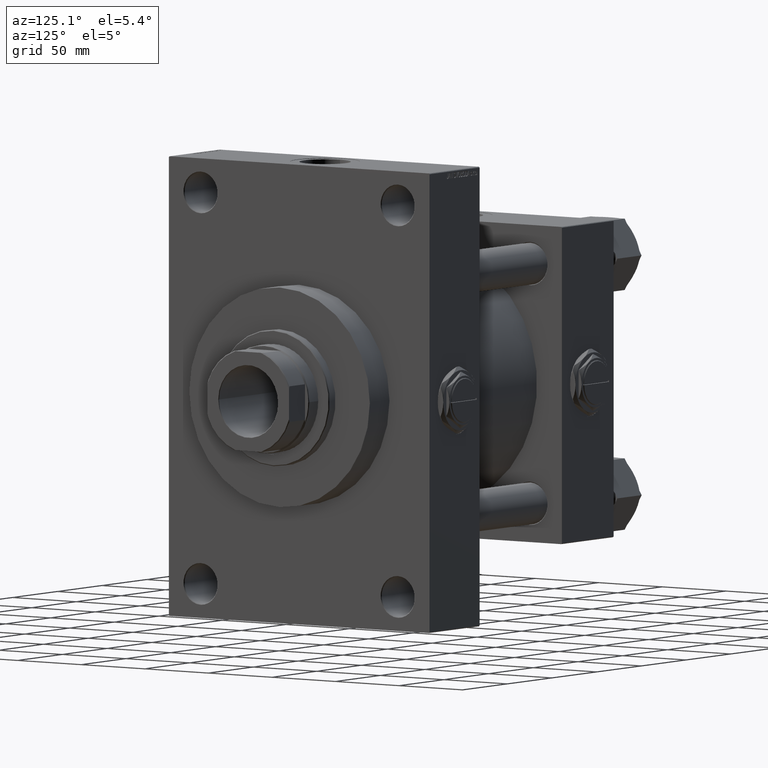
[diagram: clean part render]
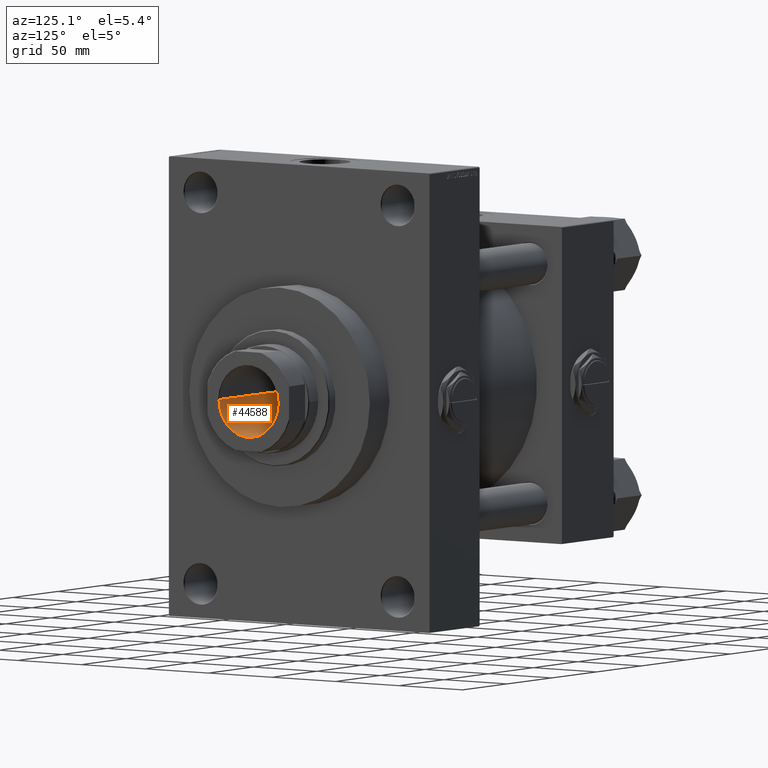
[diagram: same view with one face highlighted and labeled with its STEP entity id]
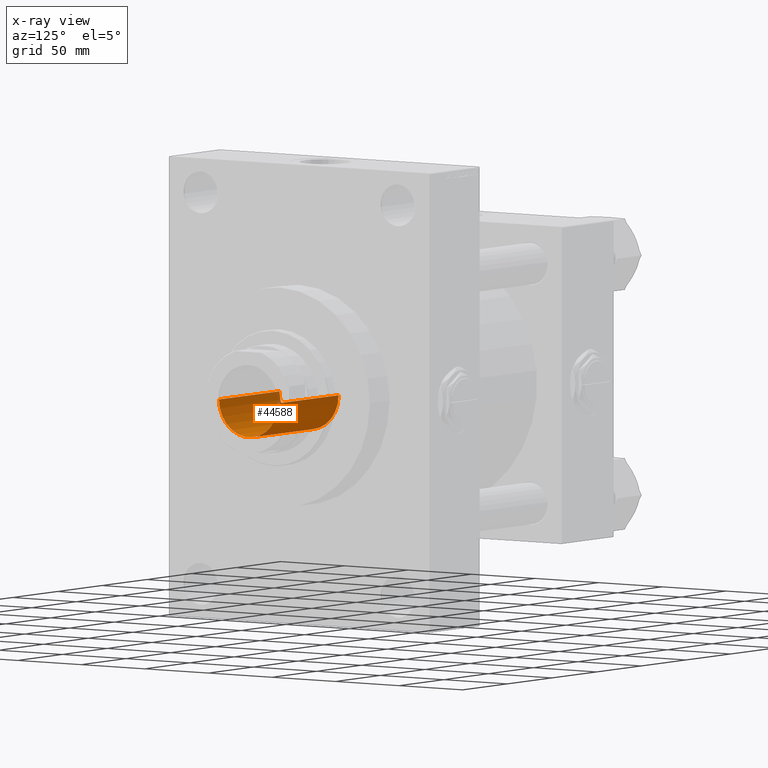
[diagram: x-ray of the same camera — body ghosted, the highlighted face saturated]
A machine part, auxiliary view. The second image highlights one B-rep face of the part: STEP entity #44588.
The next image is the same camera in x-ray: the body ghosted, the highlighted face saturated — about 1% of this face is hidden behind the body in this view.
In plain terms, the highlighted cylindrical surface (edge-blend (fillet) strip) has radius 23.25 mm, axis along (1, 0, 0).
Its self-contained STEP definition (entity closure, byte-faithful):
#722 = CARTESIAN_POINT ( 'NONE',  ( 0.000000000000000000, 0.000000000000000000, 205.0000000000000000 ) ) ;
#1824 = ORIENTED_EDGE ( 'NONE', *, *, #2551, .F. ) ;
#1979 = CARTESIAN_POINT ( 'NONE',  ( -23.24999999999999289, 2.847303808017595350E-15, 205.0000000000000000 ) ) ;
#2551 = EDGE_CURVE ( 'NONE', #13494, #7389, #10045, .T. ) ;
#2690 = CIRCLE ( 'NONE', #37274, 23.24999999999999289 ) ;
#4000 = CYLINDRICAL_SURFACE ( 'NONE', #13345, 23.24999999999999289 ) ;
#4251 = DIRECTION ( 'NONE',  ( 1.000000000000000000, 0.000000000000000000, 0.000000000000000000 ) ) ;
#5486 = CARTESIAN_POINT ( 'NONE',  ( 0.000000000000000000, 0.000000000000000000, 136.9999999999999716 ) ) ;
#7389 = VERTEX_POINT ( 'NONE', #41402 ) ;
#10045 = LINE ( 'NONE', #1979, #28356 ) ;
#10159 = VERTEX_POINT ( 'NONE', #39017 ) ;
#12546 = AXIS2_PLACEMENT_3D ( 'NONE', #5486, #43017, #20841 ) ;
#13345 = AXIS2_PLACEMENT_3D ( 'NONE', #722, #16084, #4251 ) ;
#13494 = VERTEX_POINT ( 'NONE', #48551 ) ;
#14475 = DIRECTION ( 'NONE',  ( 1.000000000000000000, 0.000000000000000000, 0.000000000000000000 ) ) ;
#14537 = DIRECTION ( 'NONE',  ( -0.000000000000000000, -0.000000000000000000, 1.000000000000000000 ) ) ;
#16084 = DIRECTION ( 'NONE',  ( -0.000000000000000000, -0.000000000000000000, 1.000000000000000000 ) ) ;
#16187 = CARTESIAN_POINT ( 'NONE',  ( 23.24999999999999289, 0.000000000000000000, 205.0000000000000000 ) ) ;
#18260 = DIRECTION ( 'NONE',  ( 0.000000000000000000, 0.000000000000000000, 1.000000000000000000 ) ) ;
#18975 = CIRCLE ( 'NONE', #12546, 23.24999999999998579 ) ;
#19327 = EDGE_CURVE ( 'NONE', #23455, #10159, #24007, .T. ) ;
#20841 = DIRECTION ( 'NONE',  ( 1.000000000000000000, 0.000000000000000000, 0.000000000000000000 ) ) ;
#23455 = VERTEX_POINT ( 'NONE', #30252 ) ;
#23902 = FACE_OUTER_BOUND ( 'NONE', #46518, .T. ) ;
#24007 = LINE ( 'NONE', #16187, #49729 ) ;
#28356 = VECTOR ( 'NONE', #14537, 1000.000000000000000 ) ;
#29006 = ORIENTED_EDGE ( 'NONE', *, *, #19327, .T. ) ;
#30252 = CARTESIAN_POINT ( 'NONE',  ( 23.24999999999998579, 0.000000000000000000, 136.9999999999999716 ) ) ;
#34267 = EDGE_CURVE ( 'NONE', #10159, #7389, #2690, .T. ) ;
#37274 = AXIS2_PLACEMENT_3D ( 'NONE', #48984, #18260, #14475 ) ;
#39017 = CARTESIAN_POINT ( 'NONE',  ( 23.24999999999999289, 0.000000000000000000, 204.6999999999999886 ) ) ;
#40118 = DIRECTION ( 'NONE',  ( -0.000000000000000000, -0.000000000000000000, 1.000000000000000000 ) ) ;
#40453 = ORIENTED_EDGE ( 'NONE', *, *, #44798, .F. ) ;
#41402 = CARTESIAN_POINT ( 'NONE',  ( -23.24999999999999289, 2.847303808017595350E-15, 204.6999999999999886 ) ) ;
#41623 = ORIENTED_EDGE ( 'NONE', *, *, #34267, .T. ) ;
#43017 = DIRECTION ( 'NONE',  ( -0.000000000000000000, -0.000000000000000000, 1.000000000000000000 ) ) ;
#44588 = ADVANCED_FACE ( 'NONE', ( #23902 ), #4000, .F. ) ;
#44798 = EDGE_CURVE ( 'NONE', #23455, #13494, #18975, .T. ) ;
#46518 = EDGE_LOOP ( 'NONE', ( #1824, #40453, #29006, #41623 ) ) ;
#48551 = CARTESIAN_POINT ( 'NONE',  ( -23.24999999999998579, 2.847303808017594561E-15, 136.9999999999999716 ) ) ;
#48984 = CARTESIAN_POINT ( 'NONE',  ( 0.000000000000000000, 0.000000000000000000, 204.6999999999999886 ) ) ;
#49729 = VECTOR ( 'NONE', #40118, 1000.000000000000000 ) ;